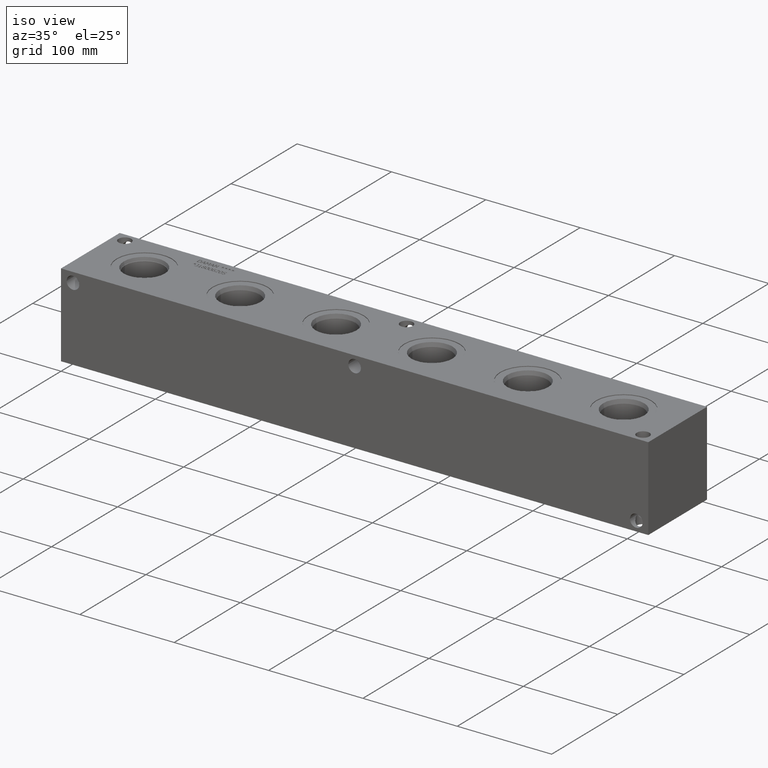
[diagram: clean part render]
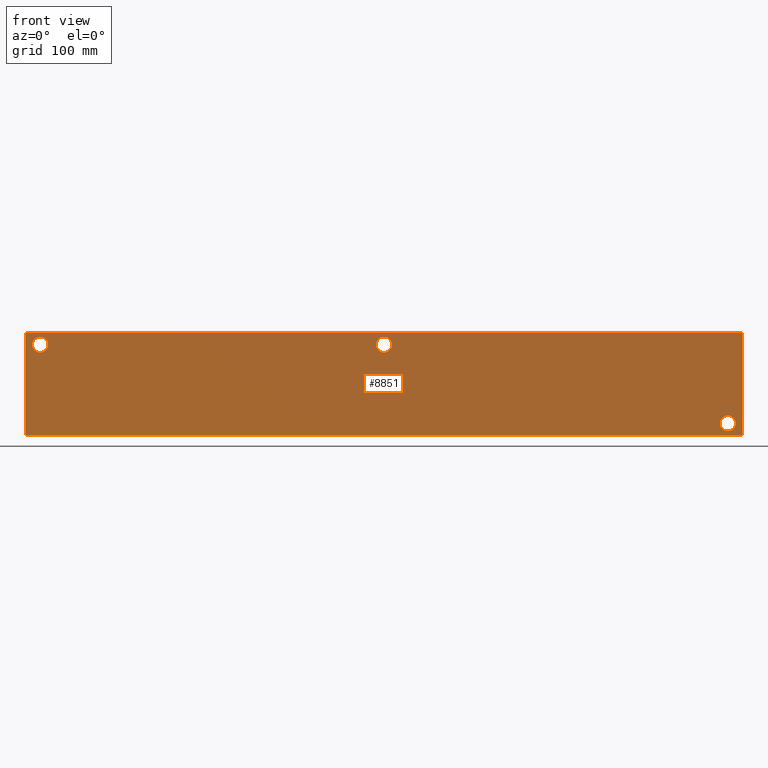
[diagram: tour spotlight — one face highlighted and labeled with its STEP entity id]
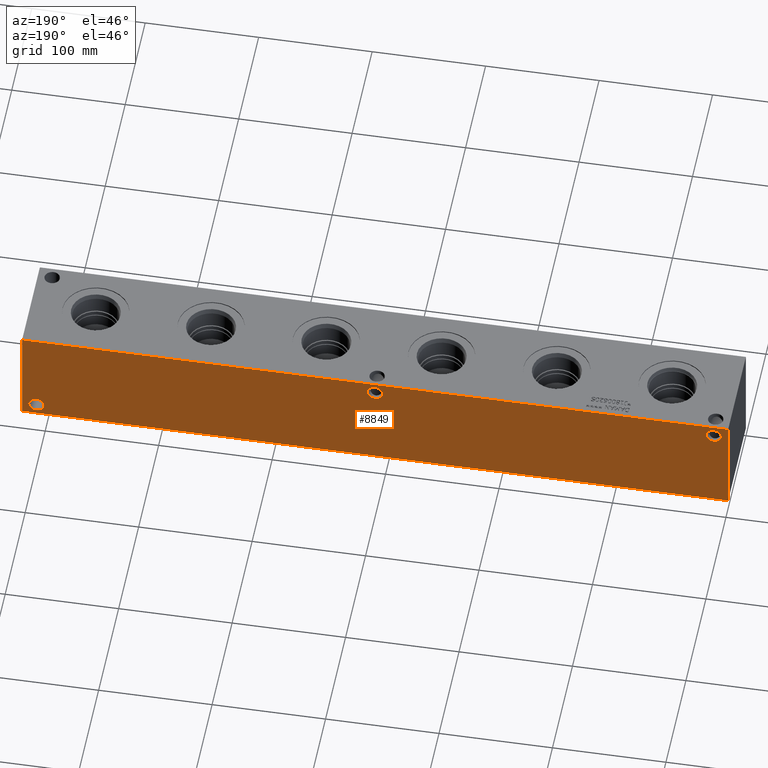
[diagram: tour spotlight — one face highlighted and labeled with its STEP entity id]
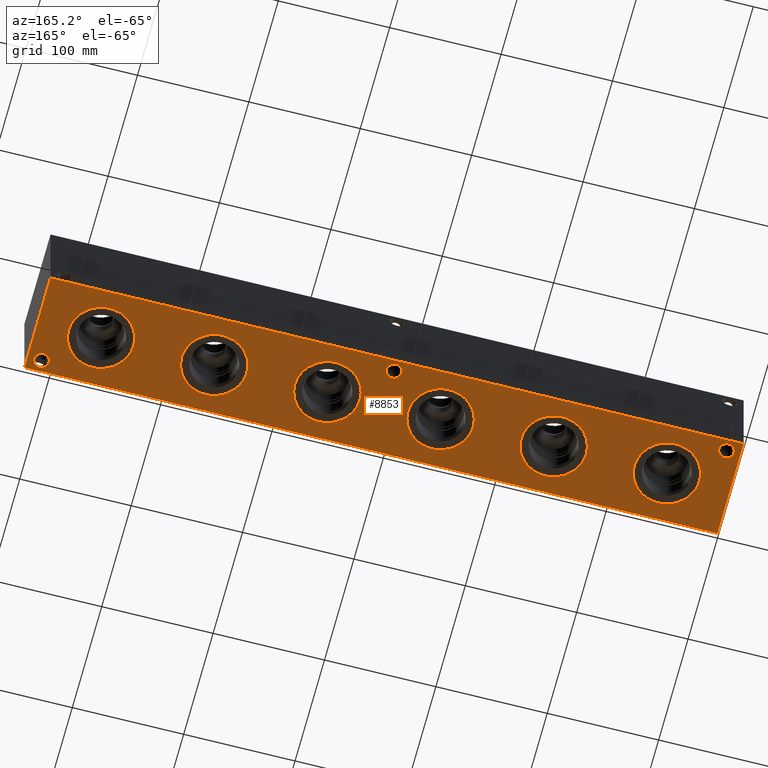
[diagram: tour spotlight — one face highlighted and labeled with its STEP entity id]
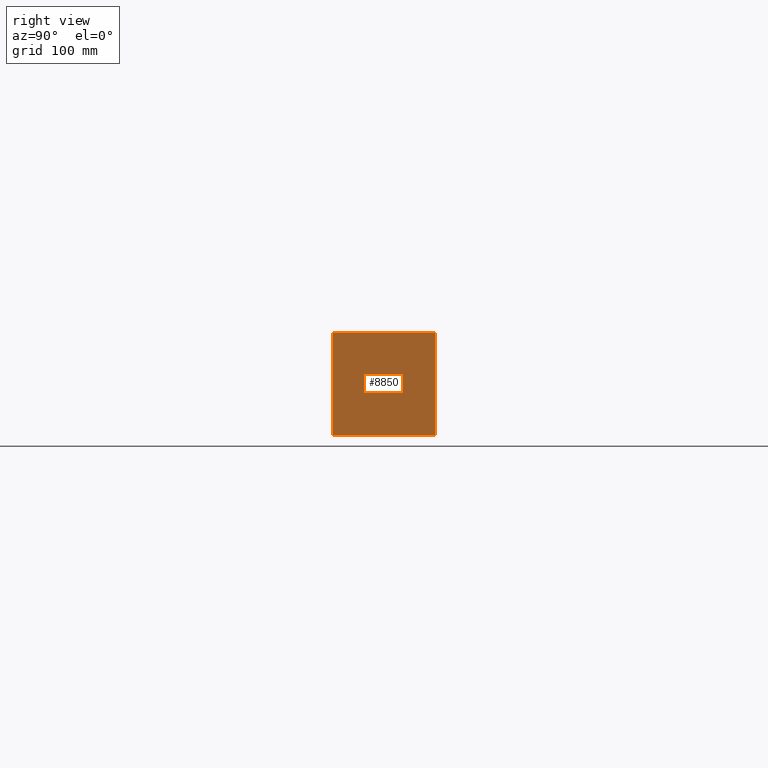
[diagram: tour spotlight — one face highlighted and labeled with its STEP entity id]
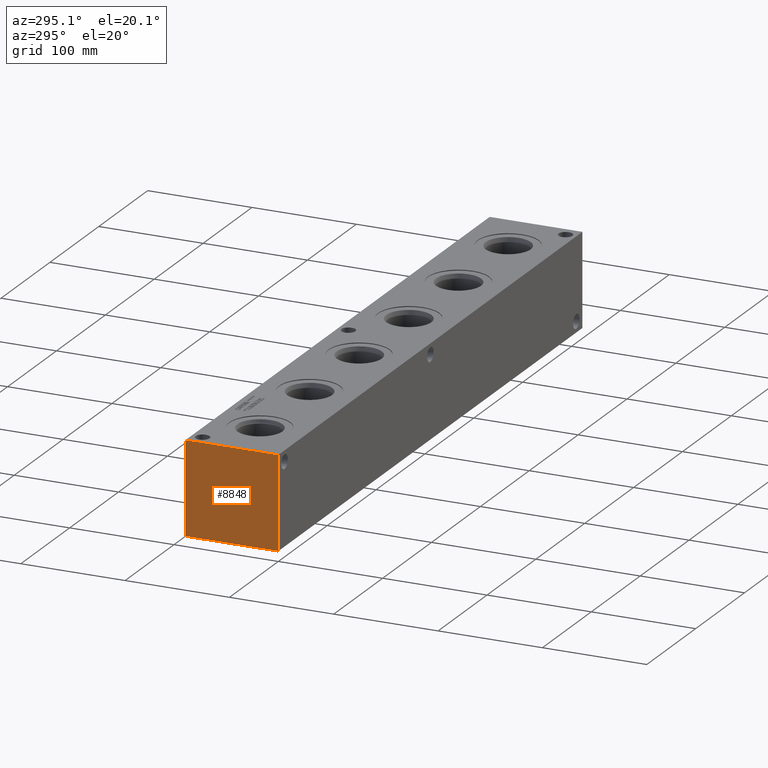
[diagram: tour spotlight — one face highlighted and labeled with its STEP entity id]
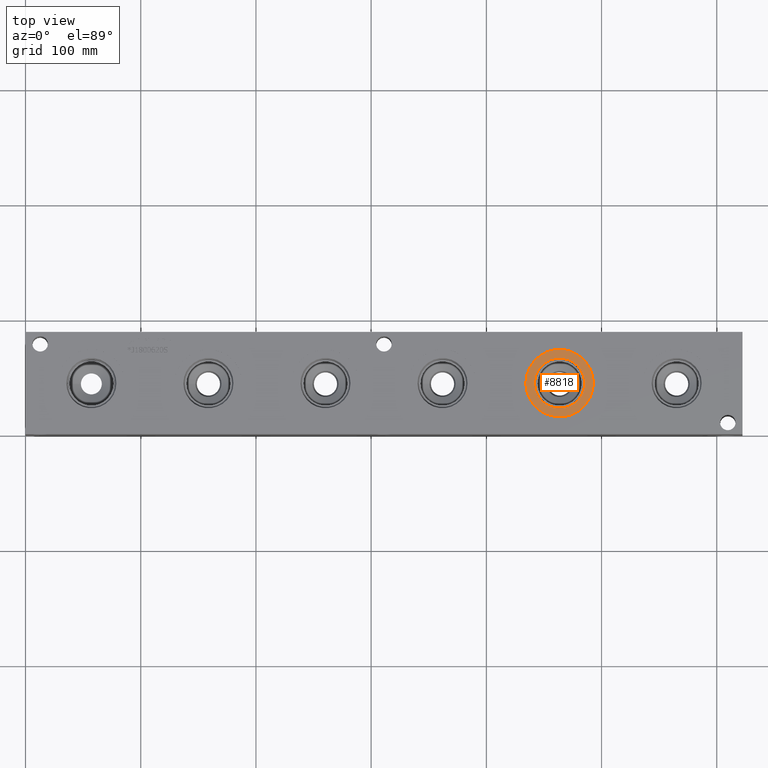
[diagram: tour spotlight — one face highlighted and labeled with its STEP entity id]
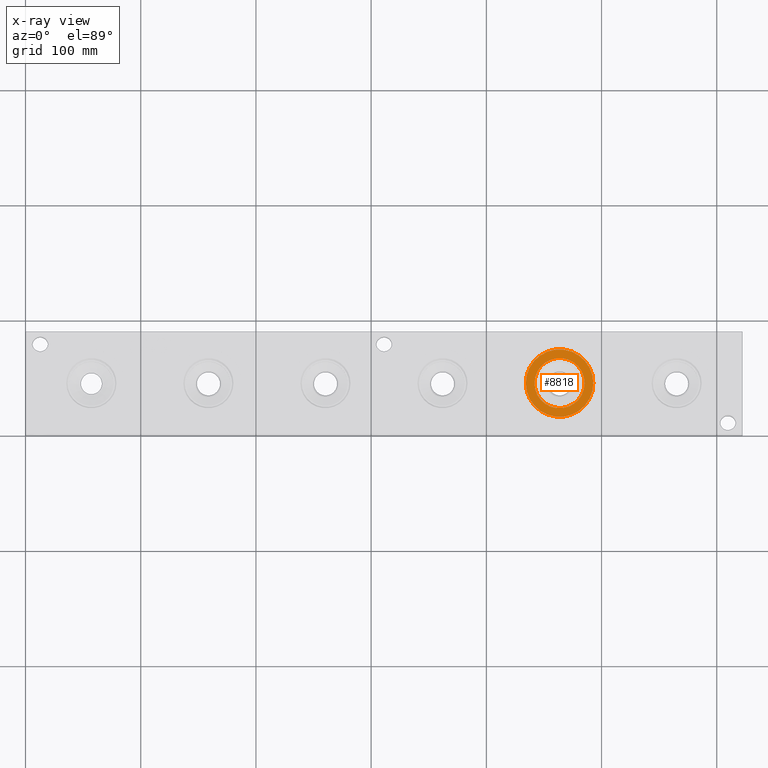
[diagram: x-ray of the same camera — body ghosted, this tour face saturated]
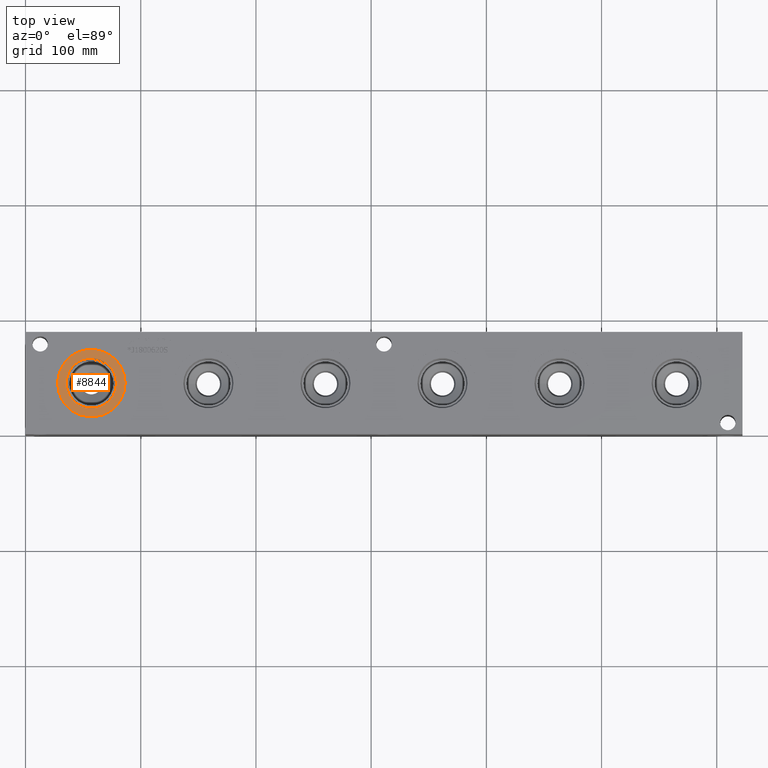
[diagram: tour spotlight — one face highlighted and labeled with its STEP entity id]
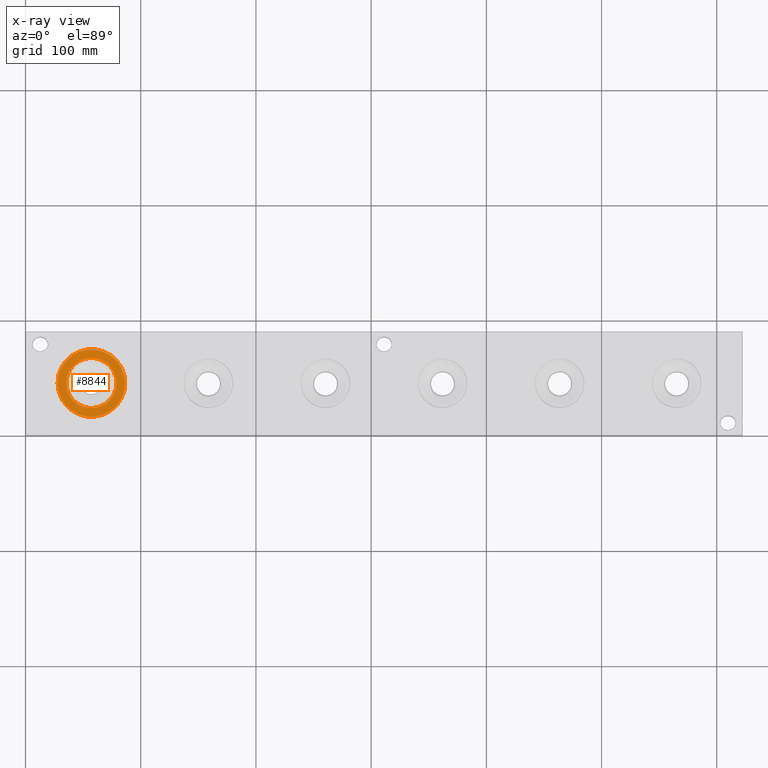
[diagram: x-ray of the same camera — body ghosted, this tour face saturated]
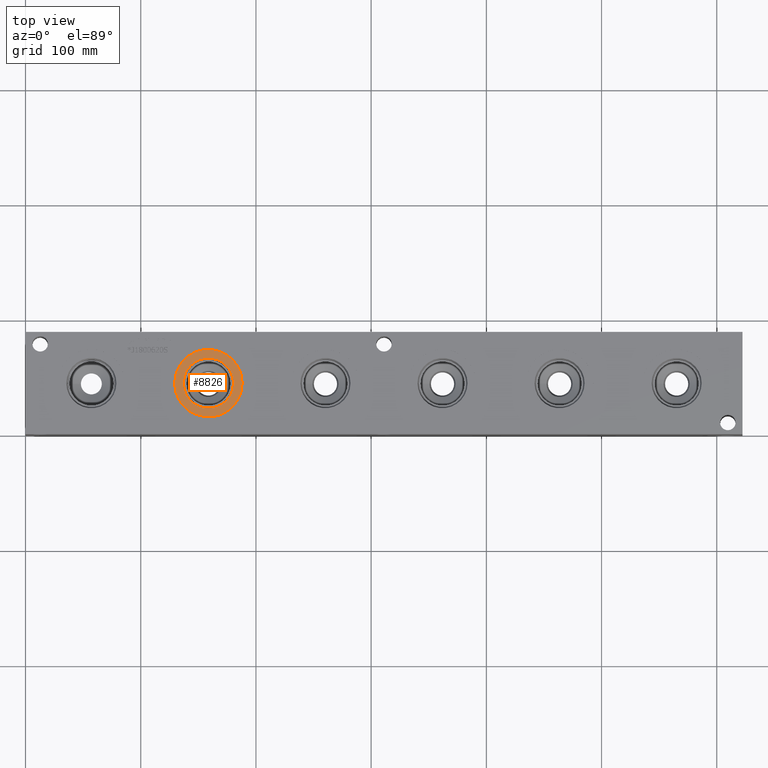
[diagram: tour spotlight — one face highlighted and labeled with its STEP entity id]
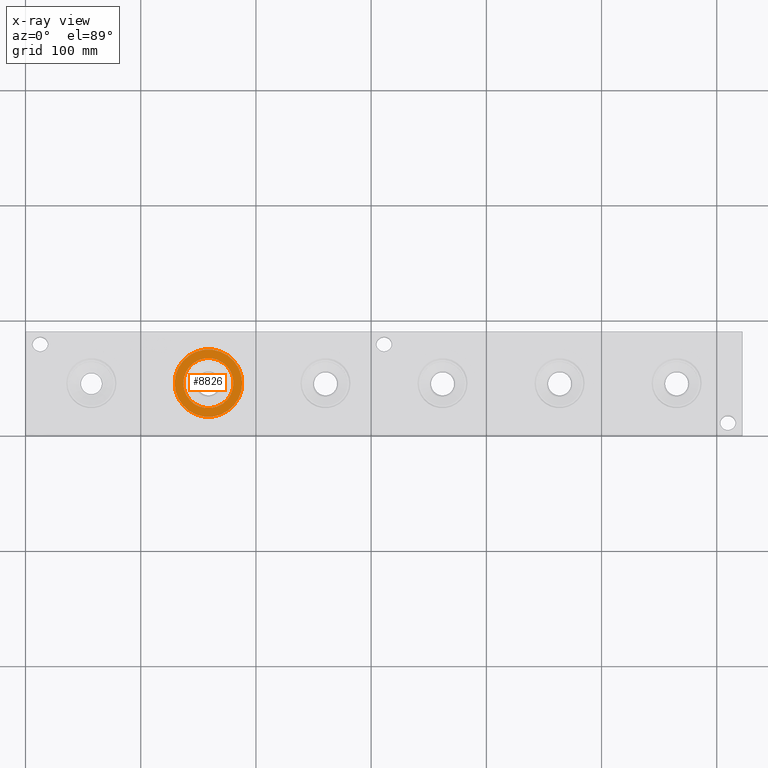
[diagram: x-ray of the same camera — body ghosted, this tour face saturated]
A machine part: a face-by-face anatomy tour. The part has 465 B-rep faces; the first image is the clean iso view, then the 8 largest visible faces are spotlighted one at a time (largest first), each with its STEP entity span.

Face 1 — front view, entity #8851. In plain terms, the highlighted planar face has unit normal (0, -1, 0).
Definition (entity closure, byte-faithful):
#164=CIRCLE('',#9087,6.7437);
#165=CIRCLE('',#9088,6.7437);
#167=CIRCLE('',#9096,6.7437);
#168=CIRCLE('',#9097,6.7437);
#170=CIRCLE('',#9105,6.7437);
#171=CIRCLE('',#9106,6.7437);
#440=FACE_BOUND('',#1789,.T.);
#441=FACE_BOUND('',#1790,.T.);
#442=FACE_BOUND('',#1791,.T.);
#1259=FACE_OUTER_BOUND('',#1788,.T.);
#1788=EDGE_LOOP('',(#7820,#7821,#7822,#7823));
#1789=EDGE_LOOP('',(#7824,#7825));
#1790=EDGE_LOOP('',(#7826,#7827));
#1791=EDGE_LOOP('',(#7828,#7829));
#2057=LINE('',#13750,#2820);
#2559=LINE('',#15409,#3322);
#2564=LINE('',#15418,#3327);
#2565=LINE('',#15420,#3328);
#2820=VECTOR('',#9836,10.);
#3322=VECTOR('',#11392,10.);
#3327=VECTOR('',#11401,10.);
#3328=VECTOR('',#11404,10.);
#3641=VERTEX_POINT('',#13748);
#3642=VERTEX_POINT('',#13749);
#3925=VERTEX_POINT('',#14700);
#3926=VERTEX_POINT('',#14701);
#3930=VERTEX_POINT('',#14716);
#3931=VERTEX_POINT('',#14717);
#3935=VERTEX_POINT('',#14732);
#3936=VERTEX_POINT('',#14733);
#4144=VERTEX_POINT('',#15407);
#4146=VERTEX_POINT('',#15416);
#4615=EDGE_CURVE('',#3641,#3642,#2057,.T.);
#5030=EDGE_CURVE('',#3925,#3926,#164,.T.);
#5031=EDGE_CURVE('',#3926,#3925,#165,.T.);
#5039=EDGE_CURVE('',#3930,#3931,#167,.T.);
#5040=EDGE_CURVE('',#3931,#3930,#168,.T.);
#5048=EDGE_CURVE('',#3935,#3936,#170,.T.);
#5049=EDGE_CURVE('',#3936,#3935,#171,.T.);
#5375=EDGE_CURVE('',#4144,#3641,#2559,.T.);
#5380=EDGE_CURVE('',#4146,#3642,#2564,.T.);
#5381=EDGE_CURVE('',#4144,#4146,#2565,.T.);
#7820=ORIENTED_EDGE('',*,*,#5381,.T.);
#7821=ORIENTED_EDGE('',*,*,#5380,.T.);
#7822=ORIENTED_EDGE('',*,*,#4615,.F.);
#7823=ORIENTED_EDGE('',*,*,#5375,.F.);
#7824=ORIENTED_EDGE('',*,*,#5030,.T.);
#7825=ORIENTED_EDGE('',*,*,#5031,.T.);
#7826=ORIENTED_EDGE('',*,*,#5039,.T.);
#7827=ORIENTED_EDGE('',*,*,#5040,.T.);
#7828=ORIENTED_EDGE('',*,*,#5048,.T.);
#7829=ORIENTED_EDGE('',*,*,#5049,.T.);
#8079=PLANE('',#9457);
#8851=ADVANCED_FACE('',(#1259,#440,#441,#442),#8079,.T.);
#9087=AXIS2_PLACEMENT_3D('',#14702,#10535,#10536);
#9088=AXIS2_PLACEMENT_3D('',#14703,#10537,#10538);
#9096=AXIS2_PLACEMENT_3D('',#14718,#10555,#10556);
#9097=AXIS2_PLACEMENT_3D('',#14719,#10557,#10558);
#9105=AXIS2_PLACEMENT_3D('',#14734,#10575,#10576);
#9106=AXIS2_PLACEMENT_3D('',#14735,#10577,#10578);
#9457=AXIS2_PLACEMENT_3D('',#15419,#11402,#11403);
#9836=DIRECTION('',(1.,0.,0.));
#10535=DIRECTION('center_axis',(0.,1.,0.));
#10536=DIRECTION('ref_axis',(1.,0.,0.));
#10537=DIRECTION('center_axis',(0.,1.,0.));
#10538=DIRECTION('ref_axis',(1.,0.,0.));
#10555=DIRECTION('center_axis',(0.,1.,0.));
#10556=DIRECTION('ref_axis',(1.,0.,0.));
#10557=DIRECTION('center_axis',(0.,1.,0.));
#10558=DIRECTION('ref_axis',(1.,0.,0.));
#10575=DIRECTION('center_axis',(0.,1.,0.));
#10576=DIRECTION('ref_axis',(1.,0.,0.));
#10577=DIRECTION('center_axis',(0.,1.,0.));
#10578=DIRECTION('ref_axis',(1.,0.,0.));
#11392=DIRECTION('',(0.,0.,1.));
#11401=DIRECTION('',(0.,0.,1.));
#11402=DIRECTION('center_axis',(0.,-1.,0.));
#11403=DIRECTION('ref_axis',(1.,0.,0.));
#11404=DIRECTION('',(1.,0.,0.));
#13748=CARTESIAN_POINT('',(0.,0.,88.9));
#13749=CARTESIAN_POINT('',(622.3,0.,88.9));
#13750=CARTESIAN_POINT('',(0.,0.,88.9));
#14700=CARTESIAN_POINT('',(317.8937,0.,78.5876));
#14701=CARTESIAN_POINT('',(304.4063,-7.105427357601E-14,78.5876));
#14702=CARTESIAN_POINT('Origin',(311.15,0.,78.5876));
#14703=CARTESIAN_POINT('Origin',(311.15,0.,78.5876));
#14716=CARTESIAN_POINT('',(19.4437,0.,78.5876));
#14717=CARTESIAN_POINT('',(5.9563,-7.105427357601E-14,78.5876));
#14718=CARTESIAN_POINT('Origin',(12.7,0.,78.5876));
#14719=CARTESIAN_POINT('Origin',(12.7,0.,78.5876));
#14732=CARTESIAN_POINT('',(616.3437,0.,10.3124));
#14733=CARTESIAN_POINT('',(602.8563,-7.105427357601E-14,10.3124));
#14734=CARTESIAN_POINT('Origin',(609.6,0.,10.3124));
#14735=CARTESIAN_POINT('Origin',(609.6,0.,10.3124));
#15407=CARTESIAN_POINT('',(0.,0.,0.));
#15409=CARTESIAN_POINT('',(0.,0.,0.));
#15416=CARTESIAN_POINT('',(622.3,0.,0.));
#15418=CARTESIAN_POINT('',(622.3,0.,0.));
#15419=CARTESIAN_POINT('Origin',(0.,0.,0.));
#15420=CARTESIAN_POINT('',(0.,0.,0.));

Face 2 — auxiliary view, entity #8849. In plain terms, the highlighted planar face has unit normal (0, 1, 0).
Definition (entity closure, byte-faithful):
#166=CIRCLE('',#9094,6.7437);
#169=CIRCLE('',#9103,6.7437);
#172=CIRCLE('',#9112,6.7437);
#437=FACE_BOUND('',#1784,.T.);
#438=FACE_BOUND('',#1785,.T.);
#439=FACE_BOUND('',#1786,.T.);
#1257=FACE_OUTER_BOUND('',#1783,.T.);
#1783=EDGE_LOOP('',(#7809,#7810,#7811,#7812));
#1784=EDGE_LOOP('',(#7813));
#1785=EDGE_LOOP('',(#7814));
#1786=EDGE_LOOP('',(#7815));
#2059=LINE('',#13754,#2822);
#2560=LINE('',#15410,#3323);
#2561=LINE('',#15413,#3324);
#2562=LINE('',#15414,#3325);
#2822=VECTOR('',#9838,10.);
#3323=VECTOR('',#11393,10.);
#3324=VECTOR('',#11396,10.);
#3325=VECTOR('',#11397,10.);
#3643=VERTEX_POINT('',#13751);
#3644=VERTEX_POINT('',#13753);
#3929=VERTEX_POINT('',#14712);
#3934=VERTEX_POINT('',#14728);
#3939=VERTEX_POINT('',#14744);
#4143=VERTEX_POINT('',#15406);
#4145=VERTEX_POINT('',#15412);
#4617=EDGE_CURVE('',#3643,#3644,#2059,.T.);
#5038=EDGE_CURVE('',#3929,#3929,#166,.T.);
#5047=EDGE_CURVE('',#3934,#3934,#169,.T.);
#5056=EDGE_CURVE('',#3939,#3939,#172,.T.);
#5376=EDGE_CURVE('',#4143,#3644,#2560,.T.);
#5377=EDGE_CURVE('',#4145,#4143,#2561,.T.);
#5378=EDGE_CURVE('',#4145,#3643,#2562,.T.);
#7809=ORIENTED_EDGE('',*,*,#5377,.T.);
#7810=ORIENTED_EDGE('',*,*,#5376,.T.);
#7811=ORIENTED_EDGE('',*,*,#4617,.F.);
#7812=ORIENTED_EDGE('',*,*,#5378,.F.);
#7813=ORIENTED_EDGE('',*,*,#5038,.T.);
#7814=ORIENTED_EDGE('',*,*,#5047,.T.);
#7815=ORIENTED_EDGE('',*,*,#5056,.T.);
#8077=PLANE('',#9455);
#8849=ADVANCED_FACE('',(#1257,#437,#438,#439),#8077,.T.);
#9094=AXIS2_PLACEMENT_3D('',#14714,#10551,#10552);
#9103=AXIS2_PLACEMENT_3D('',#14730,#10571,#10572);
#9112=AXIS2_PLACEMENT_3D('',#14746,#10591,#10592);
#9455=AXIS2_PLACEMENT_3D('',#15411,#11394,#11395);
#9838=DIRECTION('',(-1.,0.,0.));
#10551=DIRECTION('center_axis',(0.,-1.,0.));
#10552=DIRECTION('ref_axis',(1.,0.,0.));
#10571=DIRECTION('center_axis',(0.,-1.,0.));
#10572=DIRECTION('ref_axis',(1.,0.,0.));
#10591=DIRECTION('center_axis',(0.,-1.,0.));
#10592=DIRECTION('ref_axis',(1.,0.,0.));
#11393=DIRECTION('',(0.,0.,1.));
#11394=DIRECTION('center_axis',(0.,1.,0.));
#11395=DIRECTION('ref_axis',(-1.,0.,0.));
#11396=DIRECTION('',(-1.,0.,0.));
#11397=DIRECTION('',(0.,0.,1.));
#13751=CARTESIAN_POINT('',(622.3,88.9,88.9));
#13753=CARTESIAN_POINT('',(0.,88.9,88.9));
#13754=CARTESIAN_POINT('',(622.3,88.9,88.9));
#14712=CARTESIAN_POINT('',(304.4063,88.9,78.5876));
#14714=CARTESIAN_POINT('Origin',(311.15,88.9,78.5876));
#14728=CARTESIAN_POINT('',(5.9563,88.9,78.5876));
#14730=CARTESIAN_POINT('Origin',(12.7,88.9,78.5876));
#14744=CARTESIAN_POINT('',(602.8563,88.9,10.3124));
#14746=CARTESIAN_POINT('Origin',(609.6,88.9,10.3124));
#15406=CARTESIAN_POINT('',(0.,88.9,0.));
#15410=CARTESIAN_POINT('',(0.,88.9,0.));
#15411=CARTESIAN_POINT('Origin',(622.3,88.9,0.));
#15412=CARTESIAN_POINT('',(622.3,88.9,0.));
#15413=CARTESIAN_POINT('',(622.3,88.9,0.));
#15414=CARTESIAN_POINT('',(622.3,88.9,0.));

Face 3 — auxiliary view, entity #8853. In plain terms, the highlighted planar face has unit normal (0, 0, 1).
Definition (entity closure, byte-faithful):
#173=CIRCLE('',#9117,6.7437);
#174=CIRCLE('',#9119,6.7437);
#175=CIRCLE('',#9121,6.7437);
#252=CIRCLE('',#9243,29.2862);
#253=CIRCLE('',#9244,29.2862);
#258=CIRCLE('',#9253,29.2862);
#259=CIRCLE('',#9254,29.2862);
#264=CIRCLE('',#9263,29.2862);
#265=CIRCLE('',#9264,29.2862);
#270=CIRCLE('',#9273,29.2862);
#271=CIRCLE('',#9274,29.2862);
#276=CIRCLE('',#9283,29.2862);
#277=CIRCLE('',#9284,29.2862);
#282=CIRCLE('',#9293,29.2862);
#283=CIRCLE('',#9294,29.2862);
#443=FACE_BOUND('',#1794,.T.);
#444=FACE_BOUND('',#1795,.T.);
#445=FACE_BOUND('',#1796,.T.);
#446=FACE_BOUND('',#1797,.T.);
#447=FACE_BOUND('',#1798,.T.);
#448=FACE_BOUND('',#1799,.T.);
#449=FACE_BOUND('',#1800,.T.);
#450=FACE_BOUND('',#1801,.T.);
#451=FACE_BOUND('',#1802,.T.);
#1261=FACE_OUTER_BOUND('',#1793,.T.);
#1793=EDGE_LOOP('',(#7833,#7834,#7835,#7836));
#1794=EDGE_LOOP('',(#7837));
#1795=EDGE_LOOP('',(#7838));
#1796=EDGE_LOOP('',(#7839));
#1797=EDGE_LOOP('',(#7840,#7841));
#1798=EDGE_LOOP('',(#7842,#7843));
#1799=EDGE_LOOP('',(#7844,#7845));
#1800=EDGE_LOOP('',(#7846,#7847));
#1801=EDGE_LOOP('',(#7848,#7849));
#1802=EDGE_LOOP('',(#7850,#7851));
#2558=LINE('',#15408,#3321);
#2561=LINE('',#15413,#3324);
#2563=LINE('',#15417,#3326);
#2565=LINE('',#15420,#3328);
#3321=VECTOR('',#11391,10.);
#3324=VECTOR('',#11396,10.);
#3326=VECTOR('',#11400,10.);
#3328=VECTOR('',#11404,10.);
#3940=VERTEX_POINT('',#14754);
#3941=VERTEX_POINT('',#14758);
#3942=VERTEX_POINT('',#14762);
#4019=VERTEX_POINT('',#14999);
#4020=VERTEX_POINT('',#15000);
#4025=VERTEX_POINT('',#15018);
#4026=VERTEX_POINT('',#15019);
#4031=VERTEX_POINT('',#15037);
#4032=VERTEX_POINT('',#15038);
#4037=VERTEX_POINT('',#15056);
#4038=VERTEX_POINT('',#15057);
#4043=VERTEX_POINT('',#15075);
#4044=VERTEX_POINT('',#15076);
#4049=VERTEX_POINT('',#15094);
#4050=VERTEX_POINT('',#15095);
#4143=VERTEX_POINT('',#15406);
#4144=VERTEX_POINT('',#15407);
#4145=VERTEX_POINT('',#15412);
#4146=VERTEX_POINT('',#15416);
#5061=EDGE_CURVE('',#3940,#3940,#173,.T.);
#5063=EDGE_CURVE('',#3941,#3941,#174,.T.);
#5065=EDGE_CURVE('',#3942,#3942,#175,.T.);
#5179=EDGE_CURVE('',#4019,#4020,#252,.T.);
#5180=EDGE_CURVE('',#4020,#4019,#253,.T.);
#5188=EDGE_CURVE('',#4025,#4026,#258,.T.);
#5189=EDGE_CURVE('',#4026,#4025,#259,.T.);
#5197=EDGE_CURVE('',#4031,#4032,#264,.T.);
#5198=EDGE_CURVE('',#4032,#4031,#265,.T.);
#5206=EDGE_CURVE('',#4037,#4038,#270,.T.);
#5207=EDGE_CURVE('',#4038,#4037,#271,.T.);
#5215=EDGE_CURVE('',#4043,#4044,#276,.T.);
#5216=EDGE_CURVE('',#4044,#4043,#277,.T.);
#5224=EDGE_CURVE('',#4049,#4050,#282,.T.);
#5225=EDGE_CURVE('',#4050,#4049,#283,.T.);
#5374=EDGE_CURVE('',#4143,#4144,#2558,.T.);
#5377=EDGE_CURVE('',#4145,#4143,#2561,.T.);
#5379=EDGE_CURVE('',#4146,#4145,#2563,.T.);
#5381=EDGE_CURVE('',#4144,#4146,#2565,.T.);
#7833=ORIENTED_EDGE('',*,*,#5381,.F.);
#7834=ORIENTED_EDGE('',*,*,#5374,.F.);
#7835=ORIENTED_EDGE('',*,*,#5377,.F.);
#7836=ORIENTED_EDGE('',*,*,#5379,.F.);
#7837=ORIENTED_EDGE('',*,*,#5061,.T.);
#7838=ORIENTED_EDGE('',*,*,#5063,.T.);
#7839=ORIENTED_EDGE('',*,*,#5065,.T.);
#7840=ORIENTED_EDGE('',*,*,#5179,.T.);
#7841=ORIENTED_EDGE('',*,*,#5180,.T.);
#7842=ORIENTED_EDGE('',*,*,#5188,.T.);
#7843=ORIENTED_EDGE('',*,*,#5189,.T.);
#7844=ORIENTED_EDGE('',*,*,#5197,.T.);
#7845=ORIENTED_EDGE('',*,*,#5198,.T.);
#7846=ORIENTED_EDGE('',*,*,#5206,.T.);
#7847=ORIENTED_EDGE('',*,*,#5207,.T.);
#7848=ORIENTED_EDGE('',*,*,#5215,.T.);
#7849=ORIENTED_EDGE('',*,*,#5216,.T.);
#7850=ORIENTED_EDGE('',*,*,#5224,.T.);
#7851=ORIENTED_EDGE('',*,*,#5225,.T.);
#8081=PLANE('',#9459);
#8853=ADVANCED_FACE('',(#1261,#443,#444,#445,#446,#447,#448,#449,#450,#451),
#8081,.F.);
#9117=AXIS2_PLACEMENT_3D('',#14756,#10605,#10606);
#9119=AXIS2_PLACEMENT_3D('',#14760,#10610,#10611);
#9121=AXIS2_PLACEMENT_3D('',#14764,#10615,#10616);
#9243=AXIS2_PLACEMENT_3D('',#15001,#10896,#10897);
#9244=AXIS2_PLACEMENT_3D('',#15002,#10898,#10899);
#9253=AXIS2_PLACEMENT_3D('',#15020,#10919,#10920);
#9254=AXIS2_PLACEMENT_3D('',#15021,#10921,#10922);
#9263=AXIS2_PLACEMENT_3D('',#15039,#10942,#10943);
#9264=AXIS2_PLACEMENT_3D('',#15040,#10944,#10945);
#9273=AXIS2_PLACEMENT_3D('',#15058,#10965,#10966);
#9274=AXIS2_PLACEMENT_3D('',#15059,#10967,#10968);
#9283=AXIS2_PLACEMENT_3D('',#15077,#10988,#10989);
#9284=AXIS2_PLACEMENT_3D('',#15078,#10990,#10991);
#9293=AXIS2_PLACEMENT_3D('',#15096,#11011,#11012);
#9294=AXIS2_PLACEMENT_3D('',#15097,#11013,#11014);
#9459=AXIS2_PLACEMENT_3D('',#15422,#11407,#11408);
#10605=DIRECTION('center_axis',(0.,0.,1.));
#10606=DIRECTION('ref_axis',(1.,0.,0.));
#10610=DIRECTION('center_axis',(0.,0.,1.));
#10611=DIRECTION('ref_axis',(1.,0.,0.));
#10615=DIRECTION('center_axis',(0.,0.,1.));
#10616=DIRECTION('ref_axis',(1.,0.,0.));
#10896=DIRECTION('center_axis',(0.,0.,1.));
#10897=DIRECTION('ref_axis',(1.,0.,0.));
#10898=DIRECTION('center_axis',(0.,0.,1.));
#10899=DIRECTION('ref_axis',(1.,0.,0.));
#10919=DIRECTION('center_axis',(0.,0.,1.));
#10920=DIRECTION('ref_axis',(1.,0.,0.));
#10921=DIRECTION('center_axis',(0.,0.,1.));
#10922=DIRECTION('ref_axis',(1.,0.,0.));
#10942=DIRECTION('center_axis',(0.,0.,1.));
#10943=DIRECTION('ref_axis',(1.,0.,0.));
#10944=DIRECTION('center_axis',(0.,0.,1.));
#10945=DIRECTION('ref_axis',(1.,0.,0.));
#10965=DIRECTION('center_axis',(0.,0.,1.));
#10966=DIRECTION('ref_axis',(1.,0.,0.));
#10967=DIRECTION('center_axis',(0.,0.,1.));
#10968=DIRECTION('ref_axis',(1.,0.,0.));
#10988=DIRECTION('center_axis',(0.,0.,1.));
#10989=DIRECTION('ref_axis',(1.,0.,0.));
#10990=DIRECTION('center_axis',(0.,0.,1.));
#10991=DIRECTION('ref_axis',(1.,0.,0.));
#11011=DIRECTION('center_axis',(0.,0.,1.));
#11012=DIRECTION('ref_axis',(1.,0.,0.));
#11013=DIRECTION('center_axis',(0.,0.,1.));
#11014=DIRECTION('ref_axis',(1.,0.,0.));
#11391=DIRECTION('',(0.,-1.,0.));
#11396=DIRECTION('',(-1.,0.,0.));
#11400=DIRECTION('',(0.,1.,0.));
#11404=DIRECTION('',(1.,0.,0.));
#11407=DIRECTION('center_axis',(0.,0.,1.));
#11408=DIRECTION('ref_axis',(1.,0.,0.));
#14754=CARTESIAN_POINT('',(304.4063,78.5876,0.));
#14756=CARTESIAN_POINT('Origin',(311.15,78.5876,0.));
#14758=CARTESIAN_POINT('',(5.9563,78.5876,0.));
#14760=CARTESIAN_POINT('Origin',(12.7,78.5876,0.));
#14762=CARTESIAN_POINT('',(602.8563,10.3124,0.));
#14764=CARTESIAN_POINT('Origin',(609.6,10.3124,0.));
#14999=CARTESIAN_POINT('',(492.8362,44.45,0.));
#15000=CARTESIAN_POINT('',(434.2638,44.45,0.));
#15001=CARTESIAN_POINT('Origin',(463.55,44.45,0.));
#15002=CARTESIAN_POINT('Origin',(463.55,44.45,0.));
#15018=CARTESIAN_POINT('',(289.6362,44.45,0.));
#15019=CARTESIAN_POINT('',(231.0638,44.45,0.));
#15020=CARTESIAN_POINT('Origin',(260.35,44.45,0.));
#15021=CARTESIAN_POINT('Origin',(260.35,44.45,0.));
#15037=CARTESIAN_POINT('',(86.4362,44.45,0.));
#15038=CARTESIAN_POINT('',(27.8638,44.45,0.));
#15039=CARTESIAN_POINT('Origin',(57.15,44.45,0.));
#15040=CARTESIAN_POINT('Origin',(57.15,44.45,0.));
#15056=CARTESIAN_POINT('',(188.0362,44.45,0.));
#15057=CARTESIAN_POINT('',(129.4638,44.45,0.));
#15058=CARTESIAN_POINT('Origin',(158.75,44.45,0.));
#15059=CARTESIAN_POINT('Origin',(158.75,44.45,0.));
#15075=CARTESIAN_POINT('',(391.2362,44.45,0.));
#15076=CARTESIAN_POINT('',(332.6638,44.45,0.));
#15077=CARTESIAN_POINT('Origin',(361.95,44.45,0.));
#15078=CARTESIAN_POINT('Origin',(361.95,44.45,0.));
#15094=CARTESIAN_POINT('',(594.4362,44.45,0.));
#15095=CARTESIAN_POINT('',(535.8638,44.45,0.));
#15096=CARTESIAN_POINT('Origin',(565.15,44.45,0.));
#15097=CARTESIAN_POINT('Origin',(565.15,44.45,0.));
#15406=CARTESIAN_POINT('',(0.,88.9,0.));
#15407=CARTESIAN_POINT('',(0.,0.,0.));
#15408=CARTESIAN_POINT('',(0.,88.9,0.));
#15412=CARTESIAN_POINT('',(622.3,88.9,0.));
#15413=CARTESIAN_POINT('',(622.3,88.9,0.));
#15416=CARTESIAN_POINT('',(622.3,0.,0.));
#15417=CARTESIAN_POINT('',(622.3,0.,0.));
#15420=CARTESIAN_POINT('',(0.,0.,0.));
#15422=CARTESIAN_POINT('Origin',(311.15,44.45,0.));

Face 4 — right view, entity #8850. In plain terms, the highlighted planar face has unit normal (1, 0, 0).
Definition (entity closure, byte-faithful):
#1258=FACE_OUTER_BOUND('',#1787,.T.);
#1787=EDGE_LOOP('',(#7816,#7817,#7818,#7819));
#2058=LINE('',#13752,#2821);
#2562=LINE('',#15414,#3325);
#2563=LINE('',#15417,#3326);
#2564=LINE('',#15418,#3327);
#2821=VECTOR('',#9837,10.);
#3325=VECTOR('',#11397,10.);
#3326=VECTOR('',#11400,10.);
#3327=VECTOR('',#11401,10.);
#3642=VERTEX_POINT('',#13749);
#3643=VERTEX_POINT('',#13751);
#4145=VERTEX_POINT('',#15412);
#4146=VERTEX_POINT('',#15416);
#4616=EDGE_CURVE('',#3642,#3643,#2058,.T.);
#5378=EDGE_CURVE('',#4145,#3643,#2562,.T.);
#5379=EDGE_CURVE('',#4146,#4145,#2563,.T.);
#5380=EDGE_CURVE('',#4146,#3642,#2564,.T.);
#7816=ORIENTED_EDGE('',*,*,#5379,.T.);
#7817=ORIENTED_EDGE('',*,*,#5378,.T.);
#7818=ORIENTED_EDGE('',*,*,#4616,.F.);
#7819=ORIENTED_EDGE('',*,*,#5380,.F.);
#8078=PLANE('',#9456);
#8850=ADVANCED_FACE('',(#1258),#8078,.T.);
#9456=AXIS2_PLACEMENT_3D('',#15415,#11398,#11399);
#9837=DIRECTION('',(0.,1.,0.));
#11397=DIRECTION('',(0.,0.,1.));
#11398=DIRECTION('center_axis',(1.,0.,0.));
#11399=DIRECTION('ref_axis',(0.,1.,0.));
#11400=DIRECTION('',(0.,1.,0.));
#11401=DIRECTION('',(0.,0.,1.));
#13749=CARTESIAN_POINT('',(622.3,0.,88.9));
#13751=CARTESIAN_POINT('',(622.3,88.9,88.9));
#13752=CARTESIAN_POINT('',(622.3,0.,88.9));
#15412=CARTESIAN_POINT('',(622.3,88.9,0.));
#15414=CARTESIAN_POINT('',(622.3,88.9,0.));
#15415=CARTESIAN_POINT('Origin',(622.3,0.,0.));
#15416=CARTESIAN_POINT('',(622.3,0.,0.));
#15417=CARTESIAN_POINT('',(622.3,0.,0.));
#15418=CARTESIAN_POINT('',(622.3,0.,0.));

Face 5 — auxiliary view, entity #8848. In plain terms, the highlighted planar face has unit normal (-1, 0, 0).
Definition (entity closure, byte-faithful):
#1256=FACE_OUTER_BOUND('',#1782,.T.);
#1782=EDGE_LOOP('',(#7805,#7806,#7807,#7808));
#2060=LINE('',#13755,#2823);
#2558=LINE('',#15408,#3321);
#2559=LINE('',#15409,#3322);
#2560=LINE('',#15410,#3323);
#2823=VECTOR('',#9839,10.);
#3321=VECTOR('',#11391,10.);
#3322=VECTOR('',#11392,10.);
#3323=VECTOR('',#11393,10.);
#3641=VERTEX_POINT('',#13748);
#3644=VERTEX_POINT('',#13753);
#4143=VERTEX_POINT('',#15406);
#4144=VERTEX_POINT('',#15407);
#4618=EDGE_CURVE('',#3644,#3641,#2060,.T.);
#5374=EDGE_CURVE('',#4143,#4144,#2558,.T.);
#5375=EDGE_CURVE('',#4144,#3641,#2559,.T.);
#5376=EDGE_CURVE('',#4143,#3644,#2560,.T.);
#7805=ORIENTED_EDGE('',*,*,#5374,.T.);
#7806=ORIENTED_EDGE('',*,*,#5375,.T.);
#7807=ORIENTED_EDGE('',*,*,#4618,.F.);
#7808=ORIENTED_EDGE('',*,*,#5376,.F.);
#8076=PLANE('',#9454);
#8848=ADVANCED_FACE('',(#1256),#8076,.T.);
#9454=AXIS2_PLACEMENT_3D('',#15405,#11389,#11390);
#9839=DIRECTION('',(0.,-1.,0.));
#11389=DIRECTION('center_axis',(-1.,0.,0.));
#11390=DIRECTION('ref_axis',(0.,-1.,0.));
#11391=DIRECTION('',(0.,-1.,0.));
#11392=DIRECTION('',(0.,0.,1.));
#11393=DIRECTION('',(0.,0.,1.));
#13748=CARTESIAN_POINT('',(0.,0.,88.9));
#13753=CARTESIAN_POINT('',(0.,88.9,88.9));
#13755=CARTESIAN_POINT('',(0.,88.9,88.9));
#15405=CARTESIAN_POINT('Origin',(0.,88.9,0.));
#15406=CARTESIAN_POINT('',(0.,88.9,0.));
#15407=CARTESIAN_POINT('',(0.,0.,0.));
#15408=CARTESIAN_POINT('',(0.,88.9,0.));
#15409=CARTESIAN_POINT('',(0.,0.,0.));
#15410=CARTESIAN_POINT('',(0.,88.9,0.));

Face 6 — top view, entity #8818. An x-ray twin of the same camera follows (body ghosted, this face saturated) — the face is partly hidden behind the body. In plain terms, the highlighted planar face has unit normal (0, 0, 1).
Definition (entity closure, byte-faithful):
#344=CIRCLE('',#9393,29.2862);
#345=CIRCLE('',#9394,29.2862);
#346=CIRCLE('',#9395,21.7551);
#430=FACE_BOUND('',#1746,.T.);
#1226=FACE_OUTER_BOUND('',#1745,.T.);
#1745=EDGE_LOOP('',(#7664,#7665));
#1746=EDGE_LOOP('',(#7666));
#4111=VERTEX_POINT('',#15289);
#4112=VERTEX_POINT('',#15290);
#4113=VERTEX_POINT('',#15293);
#5319=EDGE_CURVE('',#4111,#4112,#344,.T.);
#5320=EDGE_CURVE('',#4112,#4111,#345,.T.);
#5321=EDGE_CURVE('',#4113,#4113,#346,.T.);
#7664=ORIENTED_EDGE('',*,*,#5319,.T.);
#7665=ORIENTED_EDGE('',*,*,#5320,.T.);
#7666=ORIENTED_EDGE('',*,*,#5321,.F.);
#8069=PLANE('',#9392);
#8818=ADVANCED_FACE('',(#1226,#430),#8069,.T.);
#9392=AXIS2_PLACEMENT_3D('',#15288,#11242,#11243);
#9393=AXIS2_PLACEMENT_3D('',#15291,#11244,#11245);
#9394=AXIS2_PLACEMENT_3D('',#15292,#11246,#11247);
#9395=AXIS2_PLACEMENT_3D('',#15294,#11248,#11249);
#11242=DIRECTION('center_axis',(0.,0.,1.));
#11243=DIRECTION('ref_axis',(1.,0.,0.));
#11244=DIRECTION('center_axis',(0.,0.,1.));
#11245=DIRECTION('ref_axis',(1.,0.,0.));
#11246=DIRECTION('center_axis',(0.,0.,1.));
#11247=DIRECTION('ref_axis',(1.,0.,0.));
#11248=DIRECTION('center_axis',(0.,0.,1.));
#11249=DIRECTION('ref_axis',(1.,0.,0.));
#15288=CARTESIAN_POINT('Origin',(463.55,44.45,88.1126));
#15289=CARTESIAN_POINT('',(492.8362,44.45,88.1126));
#15290=CARTESIAN_POINT('',(434.2638,44.45,88.1126));
#15291=CARTESIAN_POINT('Origin',(463.55,44.45,88.1126));
#15292=CARTESIAN_POINT('Origin',(463.55,44.45,88.1126));
#15293=CARTESIAN_POINT('',(441.7949,44.45,88.1126));
#15294=CARTESIAN_POINT('Origin',(463.55,44.45,88.1126));

Face 7 — top view, entity #8844. An x-ray twin of the same camera follows (body ghosted, this face saturated) — the face is partly hidden behind the body. In plain terms, the highlighted planar face has unit normal (0, 0, -1).
Definition (entity closure, byte-faithful):
#368=CIRCLE('',#9442,29.2862);
#369=CIRCLE('',#9443,29.2862);
#370=CIRCLE('',#9445,21.7551);
#371=CIRCLE('',#9446,21.7551);
#436=FACE_BOUND('',#1778,.T.);
#1252=FACE_OUTER_BOUND('',#1777,.T.);
#1777=EDGE_LOOP('',(#7784,#7785));
#1778=EDGE_LOOP('',(#7786,#7787));
#4135=VERTEX_POINT('',#15381);
#4136=VERTEX_POINT('',#15383);
#4137=VERTEX_POINT('',#15387);
#4138=VERTEX_POINT('',#15388);
#5363=EDGE_CURVE('',#4135,#4136,#368,.T.);
#5364=EDGE_CURVE('',#4136,#4135,#369,.T.);
#5365=EDGE_CURVE('',#4137,#4138,#370,.T.);
#5366=EDGE_CURVE('',#4138,#4137,#371,.T.);
#7784=ORIENTED_EDGE('',*,*,#5364,.F.);
#7785=ORIENTED_EDGE('',*,*,#5363,.F.);
#7786=ORIENTED_EDGE('',*,*,#5365,.T.);
#7787=ORIENTED_EDGE('',*,*,#5366,.T.);
#8075=PLANE('',#9444);
#8844=ADVANCED_FACE('',(#1252,#436),#8075,.F.);
#9442=AXIS2_PLACEMENT_3D('',#15384,#11362,#11363);
#9443=AXIS2_PLACEMENT_3D('',#15385,#11364,#11365);
#9444=AXIS2_PLACEMENT_3D('',#15386,#11366,#11367);
#9445=AXIS2_PLACEMENT_3D('',#15389,#11368,#11369);
#9446=AXIS2_PLACEMENT_3D('',#15390,#11370,#11371);
#11362=DIRECTION('center_axis',(0.,0.,-1.));
#11363=DIRECTION('ref_axis',(1.,0.,0.));
#11364=DIRECTION('center_axis',(0.,0.,-1.));
#11365=DIRECTION('ref_axis',(1.,0.,0.));
#11366=DIRECTION('center_axis',(0.,0.,-1.));
#11367=DIRECTION('ref_axis',(-1.,0.,0.));
#11368=DIRECTION('center_axis',(0.,0.,-1.));
#11369=DIRECTION('ref_axis',(1.,0.,0.));
#11370=DIRECTION('center_axis',(0.,0.,-1.));
#11371=DIRECTION('ref_axis',(1.,0.,0.));
#15381=CARTESIAN_POINT('',(27.8638,44.45,88.1126));
#15383=CARTESIAN_POINT('',(86.4362,44.45,88.1126));
#15384=CARTESIAN_POINT('Origin',(57.15,44.45,88.1126));
#15385=CARTESIAN_POINT('Origin',(57.15,44.45,88.1126));
#15386=CARTESIAN_POINT('Origin',(78.9051,44.45,88.1126));
#15387=CARTESIAN_POINT('',(78.9051,44.45,88.1126));
#15388=CARTESIAN_POINT('',(35.3949,44.45,88.1126));
#15389=CARTESIAN_POINT('Origin',(57.15,44.45,88.1126));
#15390=CARTESIAN_POINT('Origin',(57.15,44.45,88.1126));

Face 8 — top view, entity #8826. An x-ray twin of the same camera follows (body ghosted, this face saturated) — the face is partly hidden behind the body. In plain terms, the highlighted planar face has unit normal (0, 0, 1).
Definition (entity closure, byte-faithful):
#350=CIRCLE('',#9407,29.2862);
#351=CIRCLE('',#9408,29.2862);
#352=CIRCLE('',#9409,21.7551);
#432=FACE_BOUND('',#1756,.T.);
#1234=FACE_OUTER_BOUND('',#1755,.T.);
#1755=EDGE_LOOP('',(#7700,#7701));
#1756=EDGE_LOOP('',(#7702));
#4117=VERTEX_POINT('',#15315);
#4118=VERTEX_POINT('',#15316);
#4119=VERTEX_POINT('',#15319);
#5331=EDGE_CURVE('',#4117,#4118,#350,.T.);
#5332=EDGE_CURVE('',#4118,#4117,#351,.T.);
#5333=EDGE_CURVE('',#4119,#4119,#352,.T.);
#7700=ORIENTED_EDGE('',*,*,#5331,.T.);
#7701=ORIENTED_EDGE('',*,*,#5332,.T.);
#7702=ORIENTED_EDGE('',*,*,#5333,.F.);
#8071=PLANE('',#9406);
#8826=ADVANCED_FACE('',(#1234,#432),#8071,.T.);
#9406=AXIS2_PLACEMENT_3D('',#15314,#11276,#11277);
#9407=AXIS2_PLACEMENT_3D('',#15317,#11278,#11279);
#9408=AXIS2_PLACEMENT_3D('',#15318,#11280,#11281);
#9409=AXIS2_PLACEMENT_3D('',#15320,#11282,#11283);
#11276=DIRECTION('center_axis',(0.,0.,1.));
#11277=DIRECTION('ref_axis',(1.,0.,0.));
#11278=DIRECTION('center_axis',(0.,0.,1.));
#11279=DIRECTION('ref_axis',(1.,0.,0.));
#11280=DIRECTION('center_axis',(0.,0.,1.));
#11281=DIRECTION('ref_axis',(1.,0.,0.));
#11282=DIRECTION('center_axis',(0.,0.,1.));
#11283=DIRECTION('ref_axis',(1.,0.,0.));
#15314=CARTESIAN_POINT('Origin',(158.75,44.45,88.1126));
#15315=CARTESIAN_POINT('',(188.0362,44.45,88.1126));
#15316=CARTESIAN_POINT('',(129.4638,44.45,88.1126));
#15317=CARTESIAN_POINT('Origin',(158.75,44.45,88.1126));
#15318=CARTESIAN_POINT('Origin',(158.75,44.45,88.1126));
#15319=CARTESIAN_POINT('',(136.9949,44.45,88.1126));
#15320=CARTESIAN_POINT('Origin',(158.75,44.45,88.1126));